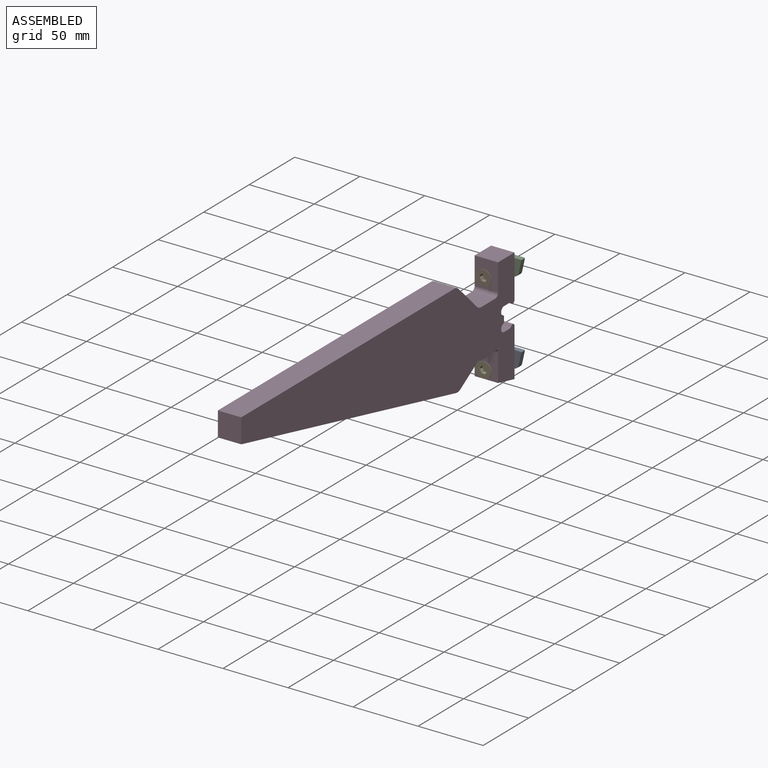
[diagram: assembled view]
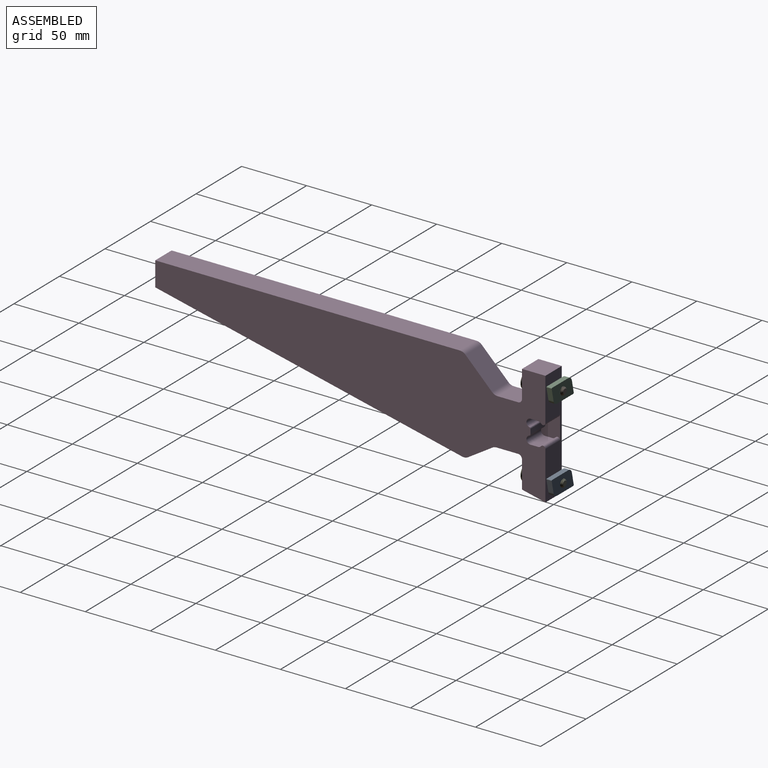
[diagram: assembled view, second angle]
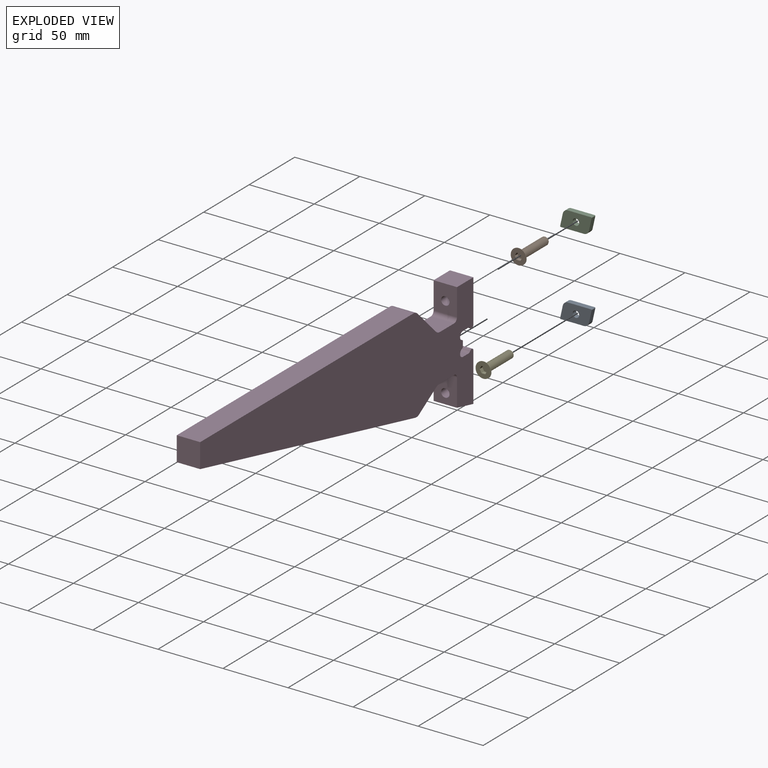
[diagram: exploded view]
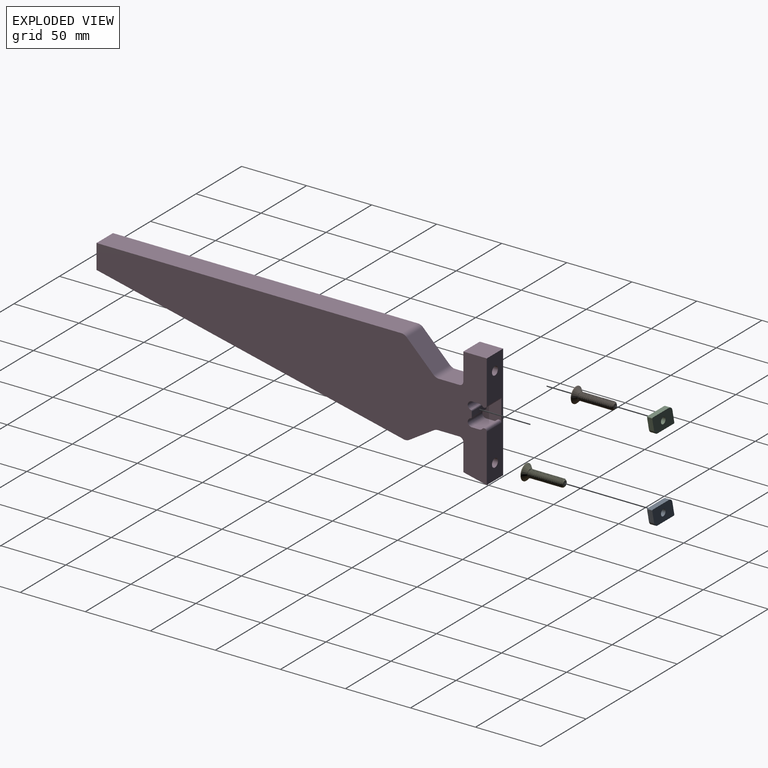
[diagram: exploded view, second angle]
ASSEMBLY  parts=5 mates=4
PART A: 11 faces, bbox 13x4x24.3 mm
  f0: plane 24.25x13mm, normal (0,1,0), area 257.2mm2, adj f1,f3,f4,f5,f6,f7,f8,f9
  f1: plane 17.78x4mm, normal (-1,0,0), area 71.1mm2, adj f0,f2,f7,f9
  f2: plane 24.25x13mm, normal (0,-1,0), area 257.2mm2, adj f1,f3,f4,f5,f6,f7,f8,f9
  f3: plane 9.26x4mm, normal (0.22,0,0.98), area 37.9mm2, adj f0,f2,f8,f9
  f4: plane 9.26x4mm, normal (-0.22,0,-0.98), area 37.9mm2, adj f0,f2,f7,f10
  f5: plane 17.78x4mm, normal (1,0,0), area 71.1mm2, adj f0,f2,f8,f10
  f6: cylinder r=2.5mm len=5mm, axis (0,-1,0), area 62.8mm2, adj f0,f2
  f7: cylinder r=4mm len=4mm, axis (0,1,0), area 21.6mm2, adj f0,f1,f2,f4
  f8: cylinder r=4mm len=4mm, axis (0,-1,0), area 21.6mm2, adj f0,f2,f3,f5
  f9: cylinder r=0.5mm len=4mm, axis (0,1,0), area 3.6mm2, adj f0,f1,f2,f3
  f10: cylinder r=0.5mm len=4mm, axis (0,-1,0), area 3.6mm2, adj f0,f2,f4,f5
PART B: 17 faces, bbox 30.3x12.3x12.3 mm
  f0: cone r=6mm half-angle=45deg, axis (1,0,0), area 120mm2, adj f1,f10,f15
  f1: cylinder r=6mm len=12mm, axis (1,0,0), area 11.3mm2, adj f0,f2
  f2: plane 12x12mm, normal (1,0,0), area 91.4mm2, adj f1,f3,f4,f5,f6,f7,f8
  f3: plane 3x2.5mm, normal (0,-0.5,0.87), area 8.7mm2, adj f2,f4,f8,f9
  f4: plane 3x2.89mm, normal (0,-1,0), area 8.7mm2, adj f2,f3,f5,f9
  f5: plane 3x2.5mm, normal (0,-0.5,-0.87), area 8.7mm2, adj f2,f4,f6,f9
  f6: plane 3x2.5mm, normal (0,0.5,-0.87), area 8.7mm2, adj f2,f5,f7,f9
  f7: plane 3x2.89mm, normal (0,1,0), area 8.7mm2, adj f2,f6,f8,f9
  f8: plane 3x2.5mm, normal (0,0.5,0.87), area 8.7mm2, adj f2,f3,f7,f9
  f9: plane 5.77x5mm, normal (1,0,0), area 21.7mm2, adj f3,f4,f5,f6,f7,f8
  f10: cylinder r=3mm len=25.7mm, axis (-1,0,0), area 130.4mm2, adj f0,f13,f14,f16
  f11: plane 4x4mm, normal (-1,0,0), area 12.6mm2, adj f16
  f12: bspline ~26.92x5.68mm, area 111.5mm2, adj f13,f14,f15,f16
  f13: bspline ~26.65x6.93mm, area 279mm2, adj f10,f12,f15,f16
  f14: bspline ~27.15x6.93mm, area 279.5mm2, adj f10,f12,f15,f16
  f15: plane 6.27x6.14mm, normal (-1,0,0), area 5.5mm2, adj f0,f12,f13,f14
  f16: cone r=3mm half-angle=45deg, axis (1,0,0), area 14.7mm2, adj f10,f11,f12,f13,f14
PART C: same geometry as A
PART D: 34 faces, bbox 18x300x88 mm
  f0: plane 88x18mm, normal (0,1,0), area 1228.7mm2, adj f1,f3,f4,f7,f20,f21,f29,f30
  f1: plane 18x18mm, normal (0,0,1), area 324mm2, adj f0,f3,f4,f12
  f2: plane 236.01x54.49mm, normal (0,-0.22,-0.97), area 4360mm2, adj f3,f4,f6,f17
  f3: plane 300x88mm, normal (1,0,0), area 14320.2mm2, adj f0,f1,f2,f5,f6,f7,f8,f9
  f4: plane 300x88mm, normal (-1,0,0), area 14545.6mm2, adj f0,f1,f2,f5,f6,f7,f8,f9
  f5: plane 234.26x18mm, normal (0,0,1), area 4216.7mm2, adj f3,f4,f6,f18
  f6: plane 18.74x18mm, normal (0,-1,0), area 337.3mm2, adj f2,f3,f4,f5
  f7: plane 18x18mm, normal (0,-0.22,-0.97), area 332.5mm2, adj f0,f3,f4,f8
  f8: plane 20.9x18mm, normal (0,-1,0), area 343mm2, adj f3,f4,f7,f14,f21
  f9: plane 18x16.43mm, normal (0,0,-1), area 295.8mm2, adj f3,f4,f14,f16
  f10: plane 18.75x18mm, normal (0,0.53,-0.85), area 397.9mm2, adj f3,f4,f16,f17
  f11: plane 18x15.67mm, normal (0,0,1), area 282mm2, adj f3,f4,f15,f19
  f12: plane 20.9x18mm, normal (0,-1,0), area 343mm2, adj f1,f3,f4,f15,f20
  f13: plane 20.49x20.49mm, normal (0,0.71,0.71), area 521.5mm2, adj f3,f4,f18,f19
  f14: cylinder r=3.1mm len=18mm, axis (1,0,0), area 87.7mm2, adj f3,f4,f8,f9
  f15: cylinder r=3.1mm len=18mm, axis (1,0,0), area 87.7mm2, adj f3,f4,f11,f12
  f16: cylinder r=6mm len=18mm, axis (1,0,0), area 60.3mm2, adj f3,f4,f9,f10
  f17: cylinder r=6mm len=18mm, axis (1,0,0), area 84.8mm2, adj f2,f3,f4,f10
  f18: cylinder r=6mm len=18mm, axis (-1,0,0), area 84.8mm2, adj f3,f4,f5,f13
  f19: cylinder r=6mm len=18mm, axis (1,0,0), area 84.8mm2, adj f3,f4,f11,f13
  f20: cylinder r=3.25mm len=18mm, axis (0,1,0), area 367.6mm2, adj f0,f12
  f21: cylinder r=3.25mm len=18mm, axis (0,1,0), area 367.6mm2, adj f0,f8
  f22: cylinder r=3.1mm len=16.05mm, axis (-1,0,0), area 44.7mm2, adj f3,f23,f30,f31
  f23: plane 16.05x5.73mm, normal (0,0,-1), area 92mm2, adj f3,f22,f24,f31
  f24: cylinder r=3.1mm len=16.05mm, axis (-1,0,0), area 144.1mm2, adj f3,f23,f31,f32
  f25: plane 16.05x3.85mm, normal (0,1,0), area 61.8mm2, adj f3,f31,f32,f33
  f26: cylinder r=3.1mm len=16.05mm, axis (-1,0,0), area 144.1mm2, adj f3,f27,f31,f33
  f27: plane 16.05x5.73mm, normal (0,0,1), area 92mm2, adj f3,f26,f28,f31
  f28: cylinder r=3.1mm len=16.05mm, axis (-1,0,0), area 44.7mm2, adj f3,f27,f29,f31
  f29: cylinder r=1.88mm len=16.05mm, axis (-1,0,0), area 74.3mm2, adj f0,f3,f28,f31
  f30: cylinder r=1.88mm len=16.05mm, axis (-1,0,0), area 74.3mm2, adj f0,f3,f22,f31
  f31: plane 18x14.6mm, normal (1,0,0), area 225.4mm2, adj f0,f22,f23,f24,f25,f26,f27,f28
  f32: cylinder r=1mm len=16.05mm, axis (-1,0,0), area 21.3mm2, adj f3,f24,f25,f31
  f33: cylinder r=1mm len=16.05mm, axis (-1,0,0), area 21.3mm2, adj f3,f25,f26,f31
PART E: same geometry as B
PLACE A rot(axis=(0,1,0),90deg) t=(0,3,-76)mm
PLACE B rot(axis=(0.58,-0.58,-0.58),120deg) t=(0,-18,-12)mm
PLACE C rot(axis=(0,1,0),90deg) t=(0,3,-12)mm
PLACE D at identity fixed
PLACE E rot(axis=(-0.58,0.58,-0.58),120deg) t=(0,-18,-76)mm
MATE fastened B.f10 <-> D.f20  axis (0,1,0) through (0,-18,-12)mm
MATE fastened A.f6 <-> D.f21  axis (0,-1,0) through (0,3,-76)mm
MATE fastened E.f10 <-> D.f21  axis (0,1,0) through (0,-18,-76)mm
MATE fastened C.f6 <-> D.f20  axis (0,-1,0) through (0,3,-12)mm
